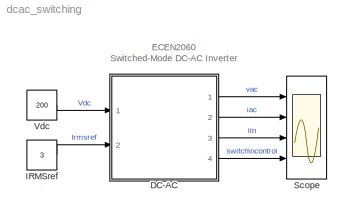
MODEL dcac_switching
KIND model
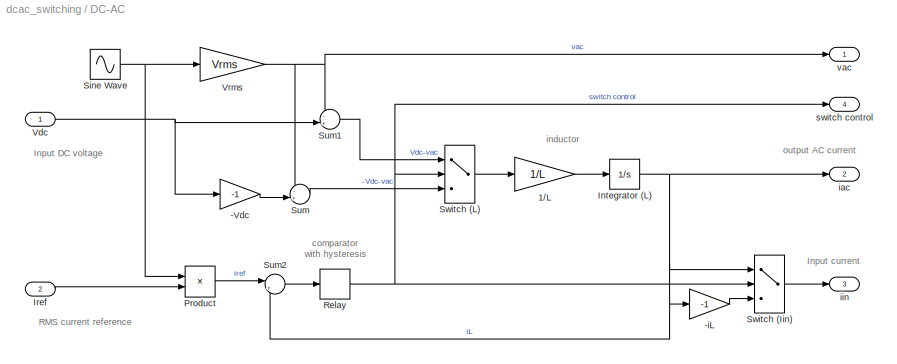
BLOCK [SubSystem] DC-AC
  FunctionWithSeparateData = off
  MaskCallbackString = |||
  MaskDescription = Switched-mode DC-AC inverter for single-phase grid-connected systems. Output current, which is  controlled using a comparator with hysteresis, is in phase with the AC line voltage and has the RMS value set by an input reference. The model is ideal, losses are neglected, efficiency is 100%
  MaskDisplay = text(0.5,0.75,'DC-AC','horizontalAlignment', 'center');\ntext(0.5,0.6,'inverter','horizontalAlignment', 'center');\ntext(0.5,0.45,'(switching)','horizontalAlignment', 'center');
  MaskEnableString = on,on,on,on
  MaskHideContents = off
  MaskIconFrame = on
  MaskIconOpaque = off
  MaskIconRotate = none
  MaskIconUnits = normalized
  MaskPromptString = AC line RMS voltage|AC line frequency|Inductance|Inductor current ripple
  MaskStyleString = edit,edit,edit,edit
  MaskTabNameString = ,,,
  MaskToolTipString = on,on,on,on
  MaskTunableValueString = on,on,on,on
  MaskValueString = 120|60|2e-3|1
  MaskVarAliasString = ,,,
  MaskVariables = Vrms=@1;f=@2;L=@3;DeltaI=@4;
  MaskVisibilityString = on,on,on,on
  MinAlgLoopOccurrences = off
  Ports = [2, 4]
  RTWSystemCode = Auto
BLOCK [Gain] DC-AC/-Vdc
  Gain = -1
  OutDataTypeMode = Inherit via internal rule
  ParameterDataTypeMode = Inherit via internal rule
  SaturateOnIntegerOverflow = off
BLOCK [Gain] DC-AC/-iL
  Gain = -1
  OutDataTypeMode = Inherit via internal rule
  ParameterDataTypeMode = Inherit via internal rule
  SaturateOnIntegerOverflow = off
BLOCK [Gain] DC-AC/1//L
  Gain = 1/L
  OutDataTypeMode = Inherit via internal rule
  ParameterDataTypeMode = Inherit via internal rule
  SaturateOnIntegerOverflow = off
BLOCK [Integrator] DC-AC/Integrator (L)
  IgnoreLimit = off
  InitialCondition = 4
  Ports = [1, 1]
BLOCK [Inport] DC-AC/Iref
  IconDisplay = Port number
  Port = 2
BLOCK [Product] DC-AC/Product
  InputSameDT = off
  OutDataTypeMode = Inherit via internal rule
  Ports = [2, 1]
  SaturateOnIntegerOverflow = off
BLOCK [Relay] DC-AC/Relay
  OffSwitchValue = -DeltaI/2
  OnSwitchValue = DeltaI/2
BLOCK [Sin] DC-AC/Sine Wave
  Amplitude = 1*sqrt(2)
  Frequency = 2*pi*f
  Ports = [0, 1]
  SampleTime = 0
  SineType = Time based
BLOCK [Sum] DC-AC/Sum
  IconShape = round
  InputSameDT = off
  Inputs = -+|
  OutDataTypeMode = Inherit via internal rule
  Ports = [2, 1]
  SaturateOnIntegerOverflow = off
BLOCK [Sum] DC-AC/Sum1
  IconShape = round
  InputSameDT = off
  Inputs = -+|
  OutDataTypeMode = Inherit via internal rule
  Ports = [2, 1]
  SaturateOnIntegerOverflow = off
BLOCK [Sum] DC-AC/Sum2
  IconShape = round
  InputSameDT = off
  Inputs = |+-
  OutDataTypeMode = Inherit via internal rule
  Ports = [2, 1]
  SaturateOnIntegerOverflow = off
BLOCK [Switch] DC-AC/Switch (Iin)
  InputSameDT = off
  SaturateOnIntegerOverflow = off
  Threshold = 0.5
BLOCK [Switch] DC-AC/Switch (L)
  InputSameDT = off
  SaturateOnIntegerOverflow = off
  Threshold = 0.5
BLOCK [Inport] DC-AC/Vdc
  IconDisplay = Port number
BLOCK [Gain] DC-AC/Vrms
  Gain = Vrms
  OutDataTypeMode = Inherit via internal rule
  ParameterDataTypeMode = Inherit via internal rule
  SaturateOnIntegerOverflow = off
BLOCK [Outport] DC-AC/iac
  BusOutputAsStruct = off
  IconDisplay = Port number
  Port = 2
BLOCK [Outport] DC-AC/iin
  BusOutputAsStruct = off
  IconDisplay = Port number
  Port = 3
BLOCK [Outport] DC-AC/switch control
  BusOutputAsStruct = off
  IconDisplay = Port number
  Port = 4
BLOCK [Outport] DC-AC/vac
  BusOutputAsStruct = off
  IconDisplay = Port number
BLOCK [Constant] IRMSref
  ConRadixGroup = Use specified scaling
  FramePeriod = inf
  OutDataType = sfix(16)
  OutDataTypeMode = Inherit from 'Constant value'
  OutScaling = 2^0
  SampleTime = inf
  SamplingMode = Sample based
  Value = 3
  VectorParams1D = on
BLOCK [Scope] Scope
  DataFormat = StructureWithTime
  Floating = off
  LimitDataPoints = off
  NumInputPorts = 4
  Ports = [4]
  SampleTime = 0
  TimeRange = 0.018
  YMax = 200~5~5~1.5
  YMin = -200~-5~-5~-0.5
  ZoomMode = xonly
BLOCK [Constant] Vdc
  ConRadixGroup = Use specified scaling
  FramePeriod = inf
  OutDataType = sfix(16)
  OutDataTypeMode = Inherit from 'Constant value'
  OutScaling = 2^0
  SampleTime = inf
  SamplingMode = Sample based
  Value = 200
  VectorParams1D = on
ANNOTATION (root): ECEN2060\nSwitched-Mode DC-AC Inverter
ANNOTATION DC-AC: Input DC voltage
ANNOTATION DC-AC: Input current
ANNOTATION DC-AC: RMS current reference
ANNOTATION DC-AC: comparator\nwith hysteresis
ANNOTATION DC-AC: inductor
ANNOTATION DC-AC: output AC current
LINE DC-AC/-Vdc:1 -> DC-AC/Sum:2
LINE DC-AC/-iL:1 -> DC-AC/Switch (Iin):3
LINE DC-AC/1//L:1 -> DC-AC/Integrator (L):1
NET DC-AC/Integrator (L):1 -> DC-AC/-iL:1, DC-AC/Sum2:2, DC-AC/Switch (Iin):1, DC-AC/iac:1
LINE DC-AC/Iref:1 -> DC-AC/Product:2
LINE DC-AC/Product:1 -> DC-AC/Sum2:1
NET DC-AC/Relay:1 -> DC-AC/Switch (Iin):2, DC-AC/Switch (L):2, DC-AC/switch control:1
NET DC-AC/Sine Wave:1 -> DC-AC/Product:1, DC-AC/Vrms:1
LINE DC-AC/Sum1:1 -> DC-AC/Switch (L):1
LINE DC-AC/Sum2:1 -> DC-AC/Relay:1
LINE DC-AC/Sum:1 -> DC-AC/Switch (L):3
LINE DC-AC/Switch (Iin):1 -> DC-AC/iin:1
LINE DC-AC/Switch (L):1 -> DC-AC/1//L:1
NET DC-AC/Vdc:1 -> DC-AC/-Vdc:1, DC-AC/Sum1:2
NET DC-AC/Vrms:1 -> DC-AC/Sum1:1, DC-AC/Sum:1, DC-AC/vac:1
LINE DC-AC:1 -> Scope:1
LINE DC-AC:2 -> Scope:2
LINE DC-AC:3 -> Scope:3
LINE DC-AC:4 -> Scope:4
LINE IRMSref:1 -> DC-AC:2
LINE Vdc:1 -> DC-AC:1
note: NET lines group one-source signal fan-out (src -> all destinations, sorted); 1:1 wires keep LINE
